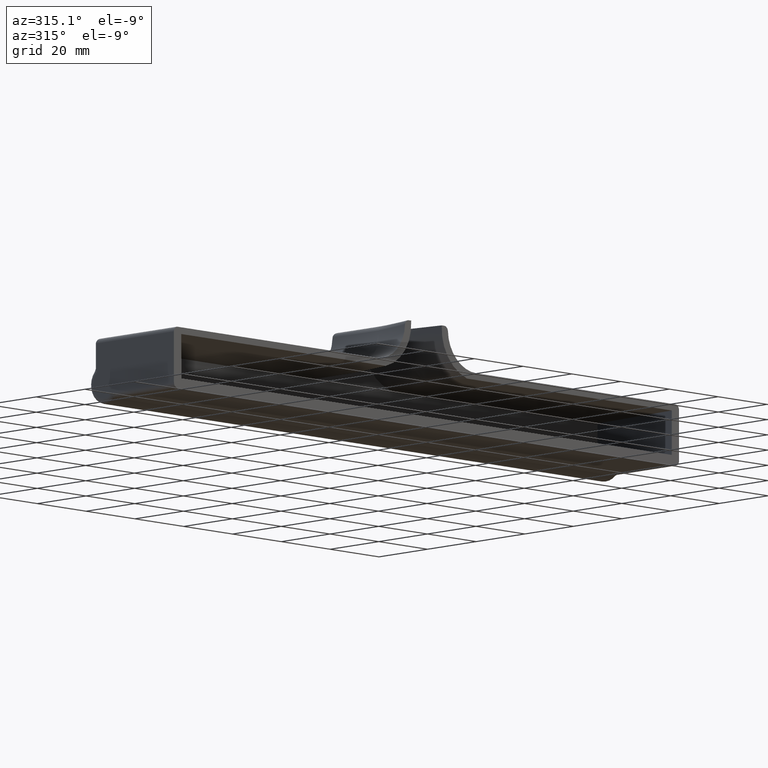
[diagram: clean part render]
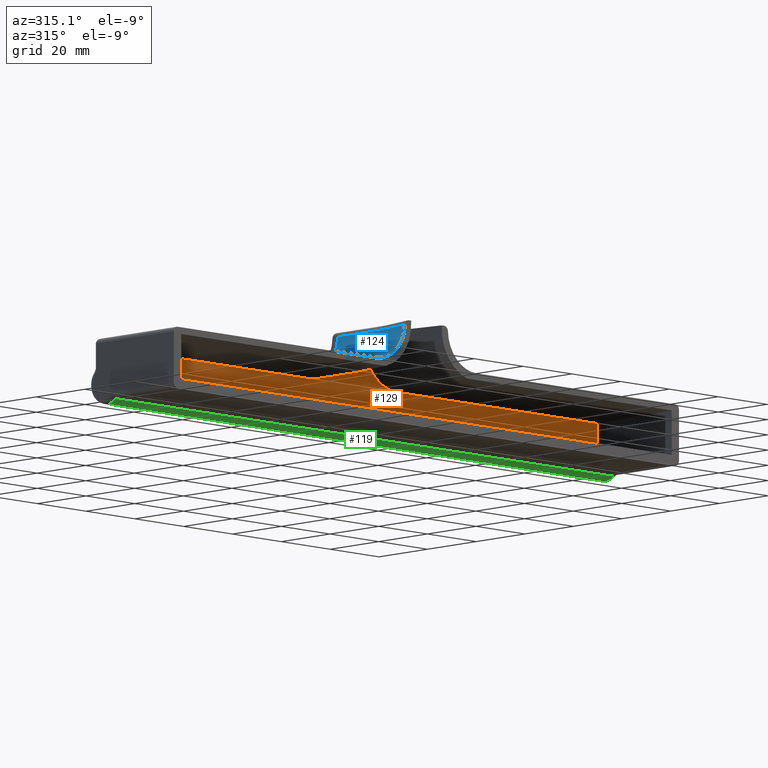
[diagram: same view with three faces highlighted in distinct colors, each labeled with its STEP entity id]
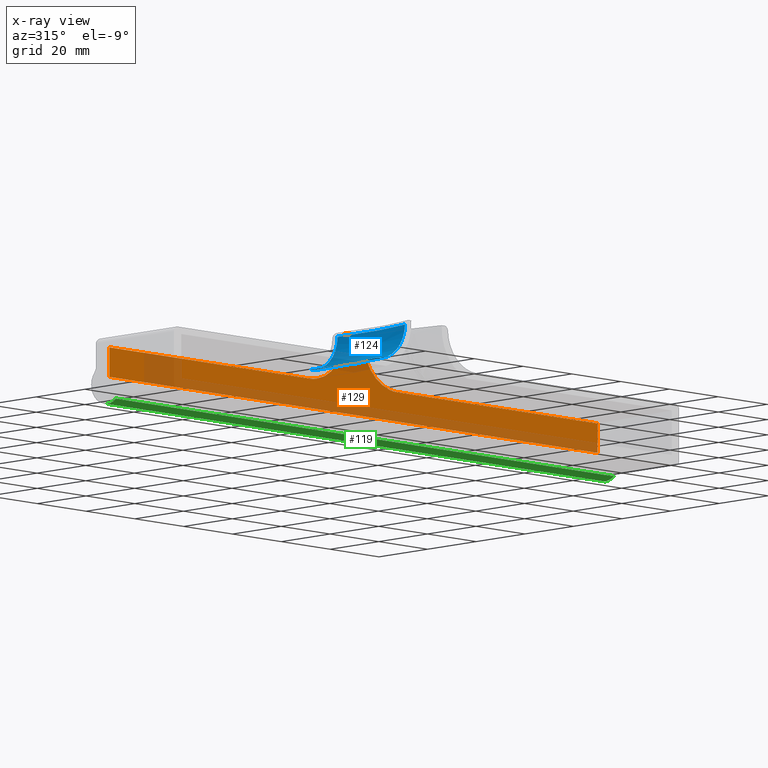
[diagram: x-ray of the same camera — body ghosted, the three highlighted faces saturated]
A machine part, auxiliary view with three faces highlighted in distinct colors.
The next image is the same camera in x-ray (body ghosted, the three faces saturated) — at least one of them is partly hidden behind the body in this view.
Their STEP definitions:

[orange] entity #129 — the highlighted planar face has unit normal (0, -1, 0).
#129=ADVANCED_FACE('',(#273),#274,.T.);
#273=FACE_OUTER_BOUND('',#623,.T.);
#274=PLANE('',#624);
#623=EDGE_LOOP('',(#1797,#1798,#1799,#1800,#1801,#1802,#1803,#1804));
#624=AXIS2_PLACEMENT_3D('',#1805,#1806,#1807);
#1797=ORIENTED_EDGE('',*,*,#2967,.F.);
#1798=ORIENTED_EDGE('',*,*,#2968,.F.);
#1799=ORIENTED_EDGE('',*,*,#2969,.F.);
#1800=ORIENTED_EDGE('',*,*,#2970,.T.);
#1801=ORIENTED_EDGE('',*,*,#2971,.F.);
#1802=ORIENTED_EDGE('',*,*,#2972,.F.);
#1803=ORIENTED_EDGE('',*,*,#2973,.F.);
#1804=ORIENTED_EDGE('',*,*,#2974,.F.);
#1805=CARTESIAN_POINT('',(17.0,30.0,169.0));
#1806=DIRECTION('',(0.0,-1.0,1.16341445918998E-15));
#1807=DIRECTION('',(1.22464679914735E-16,-1.16341445918998E-15,-1.0));
#2967=EDGE_CURVE('',#3327,#3328,#3329,.T.);
#2968=EDGE_CURVE('',#3330,#3327,#3331,.T.);
#2969=EDGE_CURVE('',#3332,#3330,#3333,.T.);
#2970=EDGE_CURVE('',#3332,#3334,#3335,.T.);
#2971=EDGE_CURVE('',#3336,#3334,#3337,.T.);
#2972=EDGE_CURVE('',#3338,#3336,#3339,.T.);
#2973=EDGE_CURVE('',#3340,#3338,#3341,.T.);
#2974=EDGE_CURVE('',#3328,#3340,#3342,.T.);
#3327=VERTEX_POINT('',#4056);
#3328=VERTEX_POINT('',#4057);
#3329=LINE('',#4058,#4059);
#3330=VERTEX_POINT('',#4060);
#3331=B_SPLINE_CURVE_WITH_KNOTS('',3,(#4061,#4062,#4063,#4064,#4065,#4066,#4067,#4068,#4069,#4070,#4071,#4072,#4073,#4074,#4075,#4076,#4077,#4078,#4079,#4080,#4081,#4082,#4083,#4084,#4085,#4086,#4087,#4088,#4089),.UNSPECIFIED.,.F.,.F.,(4,2,2,2,2,2,1,2,2,2,2,2,2,2,4),(0.0,0.000723921650554917,0.00144784330110983,0.00289568660221966,0.00579137320443929,0.00723921650554911,0.00868705980665892,0.0101349031077687,0.0115827464088786,0.0144784330110982,0.015926276312208,0.0173741196133178,0.0202698062155375,0.0217176495166473,0.0231654928177571),.UNSPECIFIED.);
#3332=VERTEX_POINT('',#4090);
#3333=LINE('',#4091,#4092);
#3334=VERTEX_POINT('',#4093);
#3335=B_SPLINE_CURVE_WITH_KNOTS('',3,(#4094,#4095,#4096,#4097,#4098,#4099,#4100,#4101,#4102,#4103,#4104,#4105,#4106,#4107,#4108,#4109,#4110,#4111,#4112,#4113,#4114,#4115,#4116,#4117,#4118,#4119,#4120,#4121,#4122),.UNSPECIFIED.,.F.,.F.,(4,2,2,2,2,2,1,2,2,2,2,2,2,2,4),(0.0,0.000723921650554902,0.0014478433011098,0.00289568660221962,0.00579137320443926,0.00723921650554908,0.0086870598066589,0.0101349031077687,0.0115827464088785,0.0144784330110982,0.015926276312208,0.0173741196133178,0.0202698062155375,0.0217176495166473,0.0231654928177571),.UNSPECIFIED.);
#3336=VERTEX_POINT('',#4123);
#3337=LINE('',#4124,#4125);
#3338=VERTEX_POINT('',#4126);
#3339=LINE('',#4127,#4128);
#3340=VERTEX_POINT('',#4129);
#3341=LINE('',#4130,#4131);
#3342=LINE('',#4132,#4133);
#4056=CARTESIAN_POINT('',(17.999999986225,30.0,6.0));
#4057=CARTESIAN_POINT('',(100.0,30.0,6.0));
#4058=CARTESIAN_POINT('',(17.0,30.0,6.0));
#4059=VECTOR('',#5223,1000.0);
#4060=CARTESIAN_POINT('',(4.0,30.0,21.0));
#4061=CARTESIAN_POINT('',(4.0,30.0,21.0));
#4062=CARTESIAN_POINT('',(4.0,30.0,20.7586927831484));
#4063=CARTESIAN_POINT('',(4.0,29.9999999999998,20.5173855662967));
#4064=CARTESIAN_POINT('',(4.0,29.9999999999998,20.0347711325934));
#4065=CARTESIAN_POINT('',(3.99944495783233,29.9999999999998,19.7934552306156));
#4066=CARTESIAN_POINT('',(4.02279059168765,29.9999999999998,19.0698988852374));
#4067=CARTESIAN_POINT('',(4.06345753247563,29.9999999999998,18.5899078365579));
#4068=CARTESIAN_POINT('',(4.25676725546057,29.9999999999998,17.1694747522423));
#4069=CARTESIAN_POINT('',(4.47989976323835,29.9999999999998,16.2431223831274));
#4070=CARTESIAN_POINT('',(4.95894680103055,29.9999999999998,14.8851451842449));
#4071=CARTESIAN_POINT('',(5.14372181120937,29.9999999999998,14.4370800240779));
#4072=CARTESIAN_POINT('',(5.55413246239103,29.9999999999998,13.5718708840484));
#4073=CARTESIAN_POINT('',(6.00677627986519,29.9999999999998,12.7322898114105));
#4074=CARTESIAN_POINT('',(6.54187345945942,29.9999999999998,11.9427433562686));
#4075=CARTESIAN_POINT('',(7.11886441374162,29.9999999999998,11.1786190178005));
#4076=CARTESIAN_POINT('',(7.43027469841196,29.9999999999998,10.8073293250876));
#4077=CARTESIAN_POINT('',(8.41150678218677,29.9999999999998,9.75365095711263));
#4078=CARTESIAN_POINT('',(9.12913740419073,29.9999999999998,9.12788171317926));
#4079=CARTESIAN_POINT('',(10.2976447087452,29.9999999999998,8.3004439519553));
#4080=CARTESIAN_POINT('',(10.7037597731671,29.9999999999998,8.04268295404373));
#4081=CARTESIAN_POINT('',(11.5433103740532,29.9999999999998,7.56885840621004));
#4082=CARTESIAN_POINT('',(11.9717704451216,29.9999999999998,7.35544659833333));
#4083=CARTESIAN_POINT('',(13.2826227430775,29.9999999999998,6.78413710130467));
#4084=CARTESIAN_POINT('',(14.1903161255852,29.9999999999998,6.49470281482434));
#4085=CARTESIAN_POINT('',(15.603058564123,29.9999999999998,6.19910189916171));
#4086=CARTESIAN_POINT('',(16.0806687507794,29.9999999999998,6.12450058978983));
#4087=CARTESIAN_POINT('',(17.0368751790405,29.9999999999998,6.02515146288905));
#4088=CARTESIAN_POINT('',(17.5172649939978,30.0,6.0));
#4089=CARTESIAN_POINT('',(18.0,30.0,6.0));
#4090=CARTESIAN_POINT('',(-4.0,30.0,21.0));
#4091=CARTESIAN_POINT('',(-6.5,30.0,21.0));
#4092=VECTOR('',#5224,1000.0);
#4093=CARTESIAN_POINT('',(-18.0,30.0,6.0));
#4094=CARTESIAN_POINT('',(-4.0,30.0,21.0));
#4095=CARTESIAN_POINT('',(-4.0,30.0,20.7586927831484));
#4096=CARTESIAN_POINT('',(-4.0,29.9999999999998,20.5173855662967));
#4097=CARTESIAN_POINT('',(-4.0,29.9999999999998,20.0347711325935));
#4098=CARTESIAN_POINT('',(-3.99944495783233,29.9999999999998,19.7934552306156));
#4099=CARTESIAN_POINT('',(-4.02279059168765,29.9999999999998,19.0698988852374));
#4100=CARTESIAN_POINT('',(-4.06345753247563,29.9999999999998,18.5899078365579));
#4101=CARTESIAN_POINT('',(-4.25676725546056,29.9999999999998,17.1694747522423));
#4102=CARTESIAN_POINT('',(-4.47989976323835,29.9999999999998,16.2431223831274));
#4103=CARTESIAN_POINT('',(-4.95894680103056,29.9999999999998,14.8851451842449));
#4104=CARTESIAN_POINT('',(-5.14372181120939,29.9999999999998,14.4370800240779));
#4105=CARTESIAN_POINT('',(-5.55413246239105,29.9999999999998,13.5718708840483));
#4106=CARTESIAN_POINT('',(-6.00677627986521,29.9999999999998,12.7322898114105));
#4107=CARTESIAN_POINT('',(-6.54187345945944,29.9999999999998,11.9427433562686));
#4108=CARTESIAN_POINT('',(-7.11886441374165,29.9999999999998,11.1786190178005));
#4109=CARTESIAN_POINT('',(-7.43027469841202,29.9999999999998,10.8073293250876));
#4110=CARTESIAN_POINT('',(-8.41150678218682,29.9999999999998,9.75365095711262));
#4111=CARTESIAN_POINT('',(-9.12913740419076,29.9999999999998,9.12788171317926));
#4112=CARTESIAN_POINT('',(-10.2976447087453,29.9999999999998,8.30044395195528));
#4113=CARTESIAN_POINT('',(-10.7037597731672,29.9999999999998,8.04268295404368));
#4114=CARTESIAN_POINT('',(-11.5433103740533,29.9999999999998,7.56885840621002));
#4115=CARTESIAN_POINT('',(-11.9717704451216,29.9999999999998,7.35544659833333));
#4116=CARTESIAN_POINT('',(-13.2826227430776,29.9999999999998,6.78413710130467));
#4117=CARTESIAN_POINT('',(-14.1903161255852,29.9999999999998,6.49470281482433));
#4118=CARTESIAN_POINT('',(-15.603058564123,29.9999999999998,6.1991018991617));
#4119=CARTESIAN_POINT('',(-16.0806687507794,29.9999999999998,6.12450058978982));
#4120=CARTESIAN_POINT('',(-17.0368751790406,29.9999999999998,6.02515146288905));
#4121=CARTESIAN_POINT('',(-17.5172649939978,30.0,6.0));
#4122=CARTESIAN_POINT('',(-18.0,30.0,6.0));
#4123=CARTESIAN_POINT('',(-100.0,30.0,6.0));
#4124=CARTESIAN_POINT('',(-100.0,30.0,6.0));
#4125=VECTOR('',#5225,1000.0);
#4126=CARTESIAN_POINT('',(-100.0,30.0,-2.67549354368586));
#4127=CARTESIAN_POINT('',(-100.0,30.0,-6.0));
#4128=VECTOR('',#5226,1000.0);
#4129=CARTESIAN_POINT('',(100.0,30.0,-2.67549354368584));
#4130=CARTESIAN_POINT('',(105.0,30.0,-2.67549354368582));
#4131=VECTOR('',#5227,1000.0);
#4132=CARTESIAN_POINT('',(100.0,30.0,6.0));
#4133=VECTOR('',#5228,1000.0);
#5223=DIRECTION('',(1.0,1.42477179352876E-31,1.22464679914735E-16));
#5224=DIRECTION('',(1.0,1.42477179352876E-31,1.22464679914735E-16));
#5225=DIRECTION('',(1.0,1.42477179352876E-31,1.22464679914735E-16));
#5226=DIRECTION('',(-1.80288795780629E-16,1.16341445918998E-15,1.0));
#5227=DIRECTION('',(-1.0,-2.09750591841134E-31,-1.80288795780629E-16));
#5228=DIRECTION('',(1.80288795780629E-16,-1.16341445918998E-15,-1.0));

[blue] entity #124 — the highlighted face is a freeform B-spline surface patch.
#124=ADVANCED_FACE('',(#259),#260,.T.);
#259=FACE_OUTER_BOUND('',#519,.T.);
#260=B_SPLINE_SURFACE_WITH_KNOTS('',3,3,((#520,#521,#522,#523,#524,#525,#526,#527,#528,#529,#530,#531,#532),(#533,#534,#535,#536,#537,#538,#539,#540,#541,#542,#543,#544,#545),(#546,#547,#548,#549,#550,#551,#552,#553,#554,#555,#556,#557,#558),(#559,#560,#561,#562,#563,#564,#565,#566,#567,#568,#569,#570,#571),(#572,#573,#574,#575,#576,#577,#578,#579,#580,#581,#582,#583,#584),(#585,#586,#587,#588,#589,#590,#591,#592,#593,#594,#595,#596,#597),(#598,#599,#600,#601,#602,#603,#604,#605,#606,#607,#608,#609,#610)),.UNSPECIFIED.,.F.,.F.,.F.,(4,1,1,1,4),(4,3,1,1,1,3,4),(0.2195232780465,0.4,0.6,0.8,1.0),(0.162319267341602,1.0,2.0,3.0,4.0,5.0,5.81937587835335),.UNSPECIFIED.);
#519=EDGE_LOOP('',(#1741,#1742,#1743,#1744,#1745));
#520=CARTESIAN_POINT('',(-6.50853747666445,30.0376365684524,19.5593264272753));
#521=CARTESIAN_POINT('',(-6.50853747666445,24.9416821358078,19.5593264272753));
#522=CARTESIAN_POINT('',(-6.50853747666445,19.8457277031631,19.5593264272753));
#523=CARTESIAN_POINT('',(-6.50853747666444,14.7497732705184,19.5593264272753));
#524=CARTESIAN_POINT('',(-6.50853747666444,14.4590092599807,19.5593264272753));
#525=CARTESIAN_POINT('',(-6.52122646396157,13.8774811713282,19.5593264272753));
#526=CARTESIAN_POINT('',(-6.57829067658542,13.0068495466609,19.5593264272753));
#527=CARTESIAN_POINT('',(-6.67327699261659,12.1395356761389,19.5593264272753));
#528=CARTESIAN_POINT('',(-6.76176207240516,11.5646388863189,19.5593264272753));
#529=CARTESIAN_POINT('',(-6.81225271296616,11.2782922344445,19.5593264272753));
#530=CARTESIAN_POINT('',(-7.59247517868147,6.85343074937588,19.5593264272753));
#531=CARTESIAN_POINT('',(-8.37269764439679,2.42856926430731,19.5593264272753));
#532=CARTESIAN_POINT('',(-9.1529201101121,-1.99629222076126,19.5593264272753));
#533=CARTESIAN_POINT('',(-6.56108680987218,30.0376365684524,18.2020944137654));
#534=CARTESIAN_POINT('',(-6.56108680987218,24.9416821358078,18.2020944137654));
#535=CARTESIAN_POINT('',(-6.56108680987218,19.8457277031631,18.2020944137654));
#536=CARTESIAN_POINT('',(-6.56108680987218,14.7497732705184,18.2020944137654));
#537=CARTESIAN_POINT('',(-6.56108680987218,14.4597736803338,18.2020944137654));
#538=CARTESIAN_POINT('',(-6.57374244228766,13.8797740164417,18.2020944137654));
#539=CARTESIAN_POINT('',(-6.63065665995157,13.0114309765598,18.2020944137654));
#540=CARTESIAN_POINT('',(-6.72539328360478,12.1463969684293,18.2020944137653));
#541=CARTESIAN_POINT('',(-6.81364580336506,11.5730111751778,18.2020944137654));
#542=CARTESIAN_POINT('',(-6.86400370372478,11.2874173303936,18.2020944137654));
#543=CARTESIAN_POINT('',(-7.64422616944009,6.86255584532502,18.2020944137654));
#544=CARTESIAN_POINT('',(-8.4244486351554,2.43769436025645,18.2020944137654));
#545=CARTESIAN_POINT('',(-9.20467110087072,-1.98716712481212,18.2020944137654));
#546=CARTESIAN_POINT('',(-7.1820107754598,30.0376365684524,15.3600098149519));
#547=CARTESIAN_POINT('',(-7.1820107754598,24.9416821358078,15.3600098149519));
#548=CARTESIAN_POINT('',(-7.1820107754598,19.8457277031631,15.3600098149519));
#549=CARTESIAN_POINT('',(-7.1820107754598,14.7497732705184,15.3600098149519));
#550=CARTESIAN_POINT('',(-7.1820107754598,14.4688060864182,15.3600098149519));
#551=CARTESIAN_POINT('',(-7.19427228593061,13.9068663198729,15.3600098149519));
#552=CARTESIAN_POINT('',(-7.24941416016686,13.0655652433003,15.3600098149519));
#553=CARTESIAN_POINT('',(-7.34120041371944,12.2274701344999,15.3600098149519));
#554=CARTESIAN_POINT('',(-7.42670499956331,11.6719383067315,15.3600098149519));
#555=CARTESIAN_POINT('',(-7.47549443906652,11.3952396454876,15.3600098149519));
#556=CARTESIAN_POINT('',(-8.25571690478183,6.97037816041903,15.3600098149519));
#557=CARTESIAN_POINT('',(-9.03593937049714,2.54551667535046,15.3600098149519));
#558=CARTESIAN_POINT('',(-9.81616183621246,-1.87934480971812,15.3600098149519));
#559=CARTESIAN_POINT('',(-9.6565700878986,30.0376365684524,11.6565700878985));
#560=CARTESIAN_POINT('',(-9.6565700878986,24.9416821358078,11.6565700878985));
#561=CARTESIAN_POINT('',(-9.6565700878986,19.8457277031631,11.6565700878985));
#562=CARTESIAN_POINT('',(-9.6565700878986,14.7497732705184,11.6565700878985));
#563=CARTESIAN_POINT('',(-9.6565700878986,14.504802803937,11.6565700878985));
#564=CARTESIAN_POINT('',(-9.66726090987554,14.01483688546,11.6565700878985));
#565=CARTESIAN_POINT('',(-9.7153394894463,13.2813057547137,11.6565700878985));
#566=CARTESIAN_POINT('',(-9.79536767564727,12.5505698523516,11.6565700878985));
#567=CARTESIAN_POINT('',(-9.86992096014073,12.0661911753697,11.6565700878985));
#568=CARTESIAN_POINT('',(-9.91245963524481,11.8249423606213,11.6565700878985));
#569=CARTESIAN_POINT('',(-10.6926821009601,7.40008087555274,11.6565700878985));
#570=CARTESIAN_POINT('',(-11.4729045666754,2.97521939048417,11.6565700878985));
#571=CARTESIAN_POINT('',(-12.2531270323907,-1.4496420945844,11.6565700878985));
#572=CARTESIAN_POINT('',(-13.4845682697276,30.0376365684524,9.09878347680647));
#573=CARTESIAN_POINT('',(-13.4845682697276,24.9416821358078,9.09878347680647));
#574=CARTESIAN_POINT('',(-13.4845682697276,19.8457277031631,9.09878347680648));
#575=CARTESIAN_POINT('',(-13.4845682697276,14.7497732705184,9.09878347680649));
#576=CARTESIAN_POINT('',(-13.4845682697276,14.5604876155803,9.09878347680649));
#577=CARTESIAN_POINT('',(-13.4928293286883,14.1818610204974,9.09878347680649));
#578=CARTESIAN_POINT('',(-13.5299814055072,13.6150436777798,9.09878347680647));
#579=CARTESIAN_POINT('',(-13.5918205508484,13.0503861736936,9.09878347680645));
#580=CARTESIAN_POINT('',(-13.6494328141882,12.6760772495252,9.09878347680649));
#581=CARTESIAN_POINT('',(-13.6823019232266,12.4896672690083,9.09878347680649));
#582=CARTESIAN_POINT('',(-14.462524388942,8.06480578393966,9.0987834768065));
#583=CARTESIAN_POINT('',(-15.2427468546573,3.63994429887109,9.0987834768065));
#584=CARTESIAN_POINT('',(-16.0229693203726,-0.784917186197468,9.0987834768065));
#585=CARTESIAN_POINT('',(-16.4948560899092,30.0376365684524,8.5));
#586=CARTESIAN_POINT('',(-16.4948560899092,24.9416821358078,8.5));
#587=CARTESIAN_POINT('',(-16.4948560899092,19.8457277031631,8.5));
#588=CARTESIAN_POINT('',(-16.4948560899092,14.7497732705184,8.5));
#589=CARTESIAN_POINT('',(-16.4948560899092,14.6042774248479,8.5));
#590=CARTESIAN_POINT('',(-16.5012064149389,14.31320662086,8.5));
#591=CARTESIAN_POINT('',(-16.5297660325692,13.8774908256671,8.5));
#592=CARTESIAN_POINT('',(-16.5773015535198,13.4434352068948,8.5));
#593=CARTESIAN_POINT('',(-16.6215916188809,13.1556837000831,8.5));
#594=CARTESIAN_POINT('',(-16.6468567073397,13.0123982632358,8.5));
#595=CARTESIAN_POINT('',(-17.427079173055,8.58753677816715,8.5));
#596=CARTESIAN_POINT('',(-18.2073016387703,4.16267529309858,8.5));
#597=CARTESIAN_POINT('',(-18.9875241044856,-0.262186191969978,8.5));
#598=CARTESIAN_POINT('',(-18.0,30.0376365684524,8.5));
#599=CARTESIAN_POINT('',(-18.0,24.9416821358078,8.5));
#600=CARTESIAN_POINT('',(-18.0,19.8457277031631,8.5));
#601=CARTESIAN_POINT('',(-18.0,14.7497732705184,8.5));
#602=CARTESIAN_POINT('',(-18.0,14.6261723294817,8.5));
#603=CARTESIAN_POINT('',(-18.0053949580643,14.3788794210414,8.5));
#604=CARTESIAN_POINT('',(-18.0296583461003,14.0087143996108,8.5));
#605=CARTESIAN_POINT('',(-18.0700420548555,13.6399597234954,8.5));
#606=CARTESIAN_POINT('',(-18.1076710212273,13.395486925362,8.5));
#607=CARTESIAN_POINT('',(-18.1291340993962,13.2737637603495,8.5));
#608=CARTESIAN_POINT('',(-18.9093565651116,8.8489022752809,8.5));
#609=CARTESIAN_POINT('',(-19.6895790308269,4.42404079021233,8.5));
#610=CARTESIAN_POINT('',(-20.4698014965422,-0.000820694856230708,8.5));
#1741=ORIENTED_EDGE('',*,*,#2929,.T.);
#1742=ORIENTED_EDGE('',*,*,#2930,.T.);
#1743=ORIENTED_EDGE('',*,*,#2931,.F.);
#1744=ORIENTED_EDGE('',*,*,#2932,.F.);
#1745=ORIENTED_EDGE('',*,*,#2933,.T.);
#2929=EDGE_CURVE('',#3256,#3257,#3258,.T.);
#2930=EDGE_CURVE('',#3257,#3259,#3260,.T.);
#2931=EDGE_CURVE('',#3261,#3259,#3262,.T.);
#2932=EDGE_CURVE('',#3263,#3261,#3264,.T.);
#2933=EDGE_CURVE('',#3263,#3256,#3265,.F.);
#3256=VERTEX_POINT('',#3844);
#3257=VERTEX_POINT('',#3845);
#3258=B_SPLINE_CURVE_WITH_KNOTS('',3,(#3846,#3847,#3848,#3849,#3850,#3851,#3852,#3853,#3854,#3855,#3856,#3857,#3858,#3859,#3860,#3861,#3862,#3863,#3864,#3865,#3866,#3867,#3868,#3869,#3870,#3871),.UNSPECIFIED.,.F.,.F.,(4,2,2,2,2,2,2,2,2,2,2,2,4),(0.0,0.00220836837548566,0.00331255256322848,0.00441673675097131,0.00662510512645696,0.00772928931419979,0.00883347350194261,0.0110418418774283,0.0121460260651711,0.0132502102529139,0.0143543944406568,0.0154585786283996,0.0176669470038852),.UNSPECIFIED.);
#3259=VERTEX_POINT('',#3872);
#3260=B_SPLINE_CURVE_WITH_KNOTS('',3,(#3873,#3874,#3875,#3876,#3877,#3878,#3879,#3880,#3881,#3882,#3883,#3884,#3885),.UNSPECIFIED.,.F.,.F.,(4,3,1,1,1,3,4),(5.42101086242752E-18,0.00379887691918594,0.00925581899040514,0.0147127610616243,0.0201697031328435,0.0256266452040628,0.030186566846094),.UNSPECIFIED.);
#3261=VERTEX_POINT('',#3886);
#3262=B_SPLINE_CURVE_WITH_KNOTS('',3,(#3887,#3888,#3889,#3890,#3891,#3892,#3893),.UNSPECIFIED.,.F.,.F.,(4,1,1,1,4),(0.0,0.2,0.4,0.6,0.780426064430475),.UNSPECIFIED.);
#3263=VERTEX_POINT('',#3894);
#3264=B_SPLINE_CURVE_WITH_KNOTS('',1,(#3895,#3896),.UNSPECIFIED.,.F.,.F.,(2,2),(0.0,1.0),.UNSPECIFIED.);
#3265=B_SPLINE_CURVE_WITH_KNOTS('',3,(#3897,#3898,#3899,#3900,#3901,#3902,#3903,#3904,#3905,#3906),.UNSPECIFIED.,.F.,.F.,(4,3,1,1,1,4),(0.0301124631949581,0.166666666666666,0.333333333333333,0.499999999999999,0.666666666666665,0.83203125),.UNSPECIFIED.);
#3844=CARTESIAN_POINT('',(-20.4696567858961,-6.93889390390723E-15,8.5));
#3845=CARTESIAN_POINT('',(-8.80096492070442,1.04083408558608E-14,19.5581835560775));
#3846=CARTESIAN_POINT('',(-20.4696567858961,-6.93889390390723E-15,8.5));
#3847=CARTESIAN_POINT('',(-19.7230095077667,-6.93889390390723E-15,8.5));
#3848=CARTESIAN_POINT('',(-18.9883379713396,1.25563678456914E-14,8.57056922139878));
#3849=CARTESIAN_POINT('',(-17.9032428215449,1.27577125474626E-14,8.77608098110867));
#3850=CARTESIAN_POINT('',(-17.5443899480181,8.88683669477061E-15,8.86135258118462));
#3851=CARTESIAN_POINT('',(-16.8325160124293,9.08759007757717E-15,9.0662607839104));
#3852=CARTESIAN_POINT('',(-16.4777301882775,1.4858159748127E-14,9.18668959078983));
#3853=CARTESIAN_POINT('',(-15.4418551055678,1.52578081662389E-14,9.59460918812194));
#3854=CARTESIAN_POINT('',(-14.785648072943,3.62334176767946E-14,9.92859582397024));
#3855=CARTESIAN_POINT('',(-13.8511283629242,3.68122767878966E-14,10.5194350837084));
#3856=CARTESIAN_POINT('',(-13.5479926146468,1.00634493999204E-14,10.7314886246749));
#3857=CARTESIAN_POINT('',(-12.9590937916184,1.05096744311911E-14,11.1869487912269));
#3858=CARTESIAN_POINT('',(-12.675242394625,3.11518276811331E-14,11.4291000325865));
#3859=CARTESIAN_POINT('',(-11.8676472158232,3.18953484015735E-14,12.1880087612212));
#3860=CARTESIAN_POINT('',(-11.3825581444371,5.34184510483793E-14,12.7410517968784));
#3861=CARTESIAN_POINT('',(-10.7340334659302,5.42996799758563E-14,13.6405187607466));
#3862=CARTESIAN_POINT('',(-10.5304330528918,1.42015246025527E-14,13.9533589841229));
#3863=CARTESIAN_POINT('',(-10.1548666273956,1.48322102556682E-14,14.5970973951929));
#3864=CARTESIAN_POINT('',(-9.98321573081004,1.23993310610363E-14,14.9271294548654));
#3865=CARTESIAN_POINT('',(-9.67257126547703,1.30622007470311E-14,15.6037179840334));
#3866=CARTESIAN_POINT('',(-9.53346077501255,3.85512937993626E-14,15.9513242442328));
#3867=CARTESIAN_POINT('',(-9.2921940238594,3.92377592851232E-14,16.6519969151189));
#3868=CARTESIAN_POINT('',(-9.18934518462789,1.0050846974712E-14,17.006219868311));
#3869=CARTESIAN_POINT('',(-8.93279149064138,1.11031007129931E-14,18.0802511962436));
#3870=CARTESIAN_POINT('',(-8.83036659017157,2.81117162072243E-14,18.8122717442505));
#3871=CARTESIAN_POINT('',(-8.80096492070442,2.88425035427612E-14,19.5581835560774));
#3872=CARTESIAN_POINT('',(-6.5085817836487,30.0,19.558183556079));
#3873=CARTESIAN_POINT('',(-8.8009649207125,1.4359173572398E-12,19.5581835558662));
#3874=CARTESIAN_POINT('',(-8.13807539608696,3.75943330942528,19.5581835558662));
#3875=CARTESIAN_POINT('',(-7.47518587146143,7.51886661884912,19.5581835558662));
#3876=CARTESIAN_POINT('',(-6.81229634683589,11.278299928273,19.5581835558662));
#3877=CARTESIAN_POINT('',(-6.76180581819485,11.5646459454178,19.5581835558662));
#3878=CARTESIAN_POINT('',(-6.67332093448937,12.1395414612404,19.5581835558662));
#3879=CARTESIAN_POINT('',(-6.57833482898643,13.0068534094955,19.5581835558662));
#3880=CARTESIAN_POINT('',(-6.52127074283089,13.8774831045415,19.5581835558662));
#3881=CARTESIAN_POINT('',(-6.50858178365695,14.459009904502,19.5581835558662));
#3882=CARTESIAN_POINT('',(-6.50858178365695,14.7497732705184,19.5581835558662));
#3883=CARTESIAN_POINT('',(-6.50858178365695,19.8331821803456,19.5581835558662));
#3884=CARTESIAN_POINT('',(-6.50858178365695,24.9165910901728,19.5581835558662));
#3885=CARTESIAN_POINT('',(-6.50858178365695,30.0,19.5581835558662));
#3886=CARTESIAN_POINT('',(-18.0,30.0,8.5));
#3887=CARTESIAN_POINT('',(-18.0,30.0,8.5));
#3888=CARTESIAN_POINT('',(-16.4948560899092,30.0,8.5));
#3889=CARTESIAN_POINT('',(-13.4845682697276,30.0,9.09878347680647));
#3890=CARTESIAN_POINT('',(-9.6565700878986,30.0,11.6565700878985));
#3891=CARTESIAN_POINT('',(-7.18222672735004,30.0,15.3596866201085));
#3892=CARTESIAN_POINT('',(-6.56125217003276,30.0,18.2013376180963));
#3893=CARTESIAN_POINT('',(-6.50858178364868,30.0,19.5581835560791));
#3894=CARTESIAN_POINT('',(-18.0000004939221,14.7468763652124,8.5));
#3895=CARTESIAN_POINT('',(-18.0,14.7468763652124,8.49999999999999));
#3896=CARTESIAN_POINT('',(-18.0,30.0,8.49999999999998));
#3897=CARTESIAN_POINT('',(-20.4696567858961,9.75781955236954E-15,8.5));
#3898=CARTESIAN_POINT('',(-19.6894825570628,4.42458792011649,8.5));
#3899=CARTESIAN_POINT('',(-18.9093083282295,8.84917584023298,8.5));
#3900=CARTESIAN_POINT('',(-18.1291340993962,13.2737637603495,8.5));
#3901=CARTESIAN_POINT('',(-18.1076710212273,13.395486925362,8.5));
#3902=CARTESIAN_POINT('',(-18.0700420548555,13.6399597234954,8.5));
#3903=CARTESIAN_POINT('',(-18.0296583461003,14.0087143996108,8.5));
#3904=CARTESIAN_POINT('',(-18.0054581439706,14.3779154496314,8.5));
#3905=CARTESIAN_POINT('',(-18.0000423126093,14.6242403615116,8.5));
#3906=CARTESIAN_POINT('',(-18.0000004939221,14.7468763652124,8.5));

[green] entity #119 — the highlighted cylindrical surface (edge-blend (fillet) strip) has radius 6 mm, axis along (1, 0, 0).
#119=ADVANCED_FACE('',(#249),#250,.T.);
#249=FACE_OUTER_BOUND('',#509,.T.);
#250=CYLINDRICAL_SURFACE('',#510,6.0);
#509=EDGE_LOOP('',(#1704,#1705,#1706,#1707));
#510=AXIS2_PLACEMENT_3D('',#1708,#1709,#1710);
#1704=ORIENTED_EDGE('',*,*,#2907,.F.);
#1705=ORIENTED_EDGE('',*,*,#2908,.T.);
#1706=ORIENTED_EDGE('',*,*,#2909,.T.);
#1707=ORIENTED_EDGE('',*,*,#2910,.T.);
#1708=CARTESIAN_POINT('',(105.0,28.9393398282202,-4.93933982822018));
#1709=DIRECTION('',(1.0,2.09750591841134E-31,1.80288795780629E-16));
#1710=DIRECTION('',(-1.80288795780629E-16,1.16341445918998E-15,1.0));
#2907=EDGE_CURVE('',#3214,#3215,#3216,.T.);
#2908=EDGE_CURVE('',#3214,#3217,#3218,.F.);
#2909=EDGE_CURVE('',#3217,#3219,#3220,.T.);
#2910=EDGE_CURVE('',#3219,#3215,#3221,.F.);
#3214=VERTEX_POINT('',#3761);
#3215=VERTEX_POINT('',#3762);
#3216=LINE('',#3763,#3764);
#3217=VERTEX_POINT('',#3765);
#3218=CIRCLE('',#3766,6.0);
#3219=VERTEX_POINT('',#3767);
#3220=LINE('',#3768,#3769);
#3221=CIRCLE('',#3770,6.0);
#3761=CARTESIAN_POINT('',(102.0,28.9393398282202,-10.9393398282202));
#3762=CARTESIAN_POINT('',(-102.0,28.9393398282202,-10.9393398282202));
#3763=CARTESIAN_POINT('',(-1.31291219405182E-14,28.9393398282202,-10.9393398282202));
#3764=VECTOR('',#5163,1.0);
#3765=CARTESIAN_POINT('',(102.0,25.4049693184109,-9.78786796564403));
#3766=AXIS2_PLACEMENT_3D('',#5164,#5165,#5166);
#3767=CARTESIAN_POINT('',(-102.0,25.4049693184109,-9.78786796564405));
#3768=CARTESIAN_POINT('',(105.0,25.4049693184109,-9.78786796564403));
#3769=VECTOR('',#5167,1000.0);
#3770=AXIS2_PLACEMENT_3D('',#5168,#5169,#5170);
#5163=DIRECTION('',(-1.0,-2.09750591841134E-31,-1.80288795780629E-16));
#5164=CARTESIAN_POINT('',(102.0,28.9393398282202,-4.93933982822018));
#5165=DIRECTION('',(1.0,2.09750591841134E-31,1.80288795780629E-16));
#5166=DIRECTION('',(1.80288795780629E-16,-1.16341445918998E-15,-1.0));
#5167=DIRECTION('',(-1.0,-2.09750591841134E-31,-1.80288795780629E-16));
#5168=CARTESIAN_POINT('',(-102.0,28.9393398282202,-4.93933982822021));
#5169=DIRECTION('',(-1.0,-2.09750591841134E-31,-1.80288795780629E-16));
#5170=DIRECTION('',(-1.80288795780629E-16,1.16341445918998E-15,1.0));